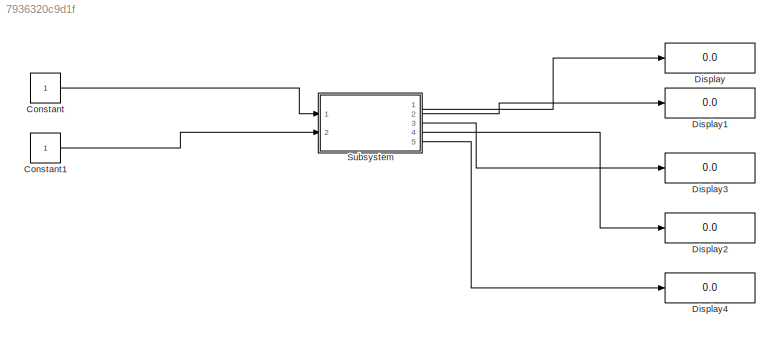
MODEL slx_7936320c9d1f
KIND model
CONFIG AbsTol = auto
CONFIG FixedStep = auto
CONFIG MaxStep = auto
CONFIG MinStep = auto
CONFIG RelTol = 1e-3
CONFIG SampleTimeConstraint = Unconstrained
CONFIG Solver = FixedStepDiscrete
CONFIG SolverMode = Auto
CONFIG SolverName = FixedStepDiscrete
CONFIG StartTime = 0.0
CONFIG StopTime = 10.0
WORKSPACE source: MAT-file member
WORKSPACE handle: class17 (value not decoded)
BLOCK [Constant] Constant
  OutDataTypeStr = uint8
BLOCK [Constant] Constant1
  OutDataTypeStr = uint8
BLOCK [Display] Display
  Decimation = 1
  Ports = [1]
BLOCK [Display] Display1
  Decimation = 1
  Ports = [1]
BLOCK [Display] Display2
  Decimation = 1
  Ports = [1]
BLOCK [Display] Display3
  Decimation = 1
  Ports = [1]
BLOCK [Display] Display4
  Decimation = 1
  Ports = [1]
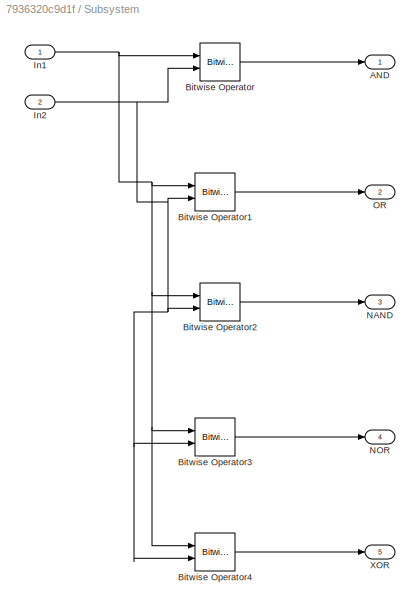
BLOCK [SubSystem] Subsystem
  Ports = [2, 5]
  RequestExecContextInheritance = off
  Variant = off
BLOCK [Outport] Subsystem/AND
  IconDisplay = Port number
BLOCK [Reference] Subsystem/Bitwise Operator  REF=simulink/Logic and Bit
Operations/Bitwise
Operator
  Ports = [2, 1]
  SourceBlock = simulink/Logic and Bit\nOperations/Bitwise\nOperator
  SourceType = Bitwise Operator
BLOCK [Reference] Subsystem/Bitwise Operator1  REF=simulink/Logic and Bit
Operations/Bitwise
Operator
  Ports = [2, 1]
  SourceBlock = simulink/Logic and Bit\nOperations/Bitwise\nOperator
  SourceType = Bitwise Operator
BLOCK [Reference] Subsystem/Bitwise Operator2  REF=simulink/Logic and Bit
Operations/Bitwise
Operator
  Ports = [2, 1]
  SourceBlock = simulink/Logic and Bit\nOperations/Bitwise\nOperator
  SourceType = Bitwise Operator
BLOCK [Reference] Subsystem/Bitwise Operator3  REF=simulink/Logic and Bit
Operations/Bitwise
Operator
  Ports = [2, 1]
  SourceBlock = simulink/Logic and Bit\nOperations/Bitwise\nOperator
  SourceType = Bitwise Operator
BLOCK [Reference] Subsystem/Bitwise Operator4  REF=simulink/Logic and Bit
Operations/Bitwise
Operator
  Ports = [2, 1]
  SourceBlock = simulink/Logic and Bit\nOperations/Bitwise\nOperator
  SourceType = Bitwise Operator
BLOCK [Inport] Subsystem/In1
  IconDisplay = Port number
  OutDataTypeStr = uint8
BLOCK [Inport] Subsystem/In2
  IconDisplay = Port number
  OutDataTypeStr = uint8
  Port = 2
BLOCK [Outport] Subsystem/NAND
  IconDisplay = Port number
  Port = 3
BLOCK [Outport] Subsystem/NOR
  IconDisplay = Port number
  Port = 4
BLOCK [Outport] Subsystem/OR
  IconDisplay = Port number
  Port = 2
BLOCK [Outport] Subsystem/XOR
  IconDisplay = Port number
  Port = 5
LINE Constant1:1 -> Subsystem:2
LINE Constant:1 -> Subsystem:1
LINE Subsystem/Bitwise Operator1:1 -> Subsystem/OR:1
LINE Subsystem/Bitwise Operator2:1 -> Subsystem/NAND:1
LINE Subsystem/Bitwise Operator3:1 -> Subsystem/NOR:1
LINE Subsystem/Bitwise Operator4:1 -> Subsystem/XOR:1
LINE Subsystem/Bitwise Operator:1 -> Subsystem/AND:1
NET Subsystem/In1:1 -> Subsystem/Bitwise Operator1:1, Subsystem/Bitwise Operator2:1, Subsystem/Bitwise Operator3:1, Subsystem/Bitwise Operator4:1, Subsystem/Bitwise Operator:1
NET Subsystem/In2:1 -> Subsystem/Bitwise Operator1:2, Subsystem/Bitwise Operator2:2, Subsystem/Bitwise Operator3:2, Subsystem/Bitwise Operator4:2, Subsystem/Bitwise Operator:2
LINE Subsystem:1 -> Display:1
LINE Subsystem:2 -> Display1:1
LINE Subsystem:3 -> Display3:1
LINE Subsystem:4 -> Display2:1
LINE Subsystem:5 -> Display4:1
note: NET lines group one-source signal fan-out (src -> all destinations, sorted); 1:1 wires keep LINE
